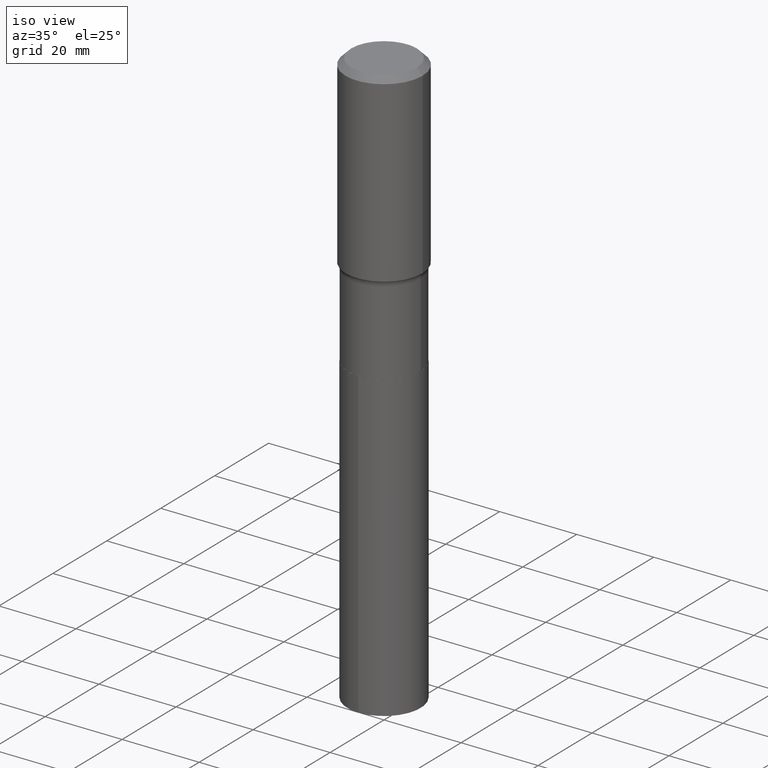
[diagram: clean part render]
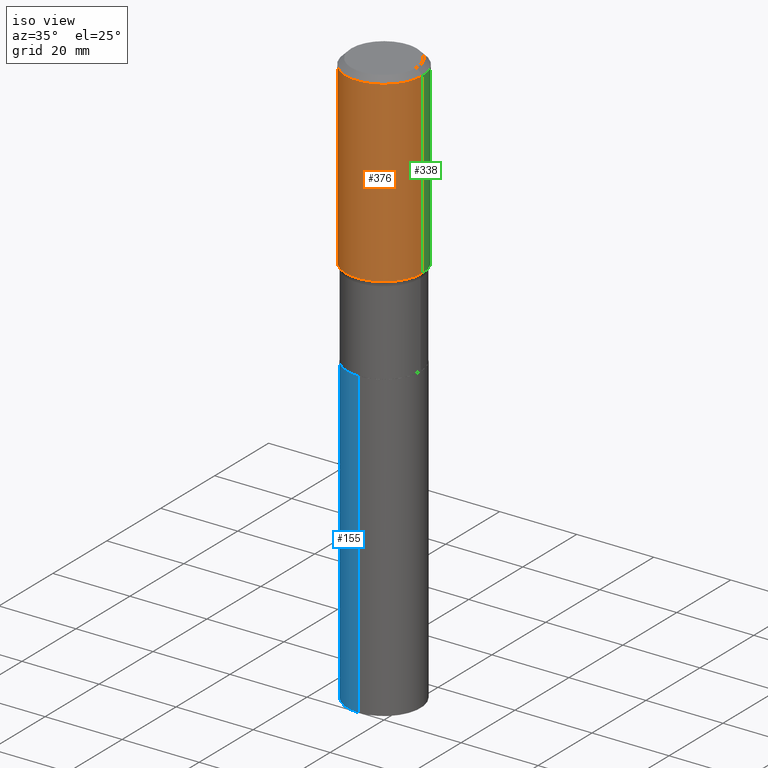
[diagram: same view with three faces highlighted in distinct colors, each labeled with its STEP entity id]
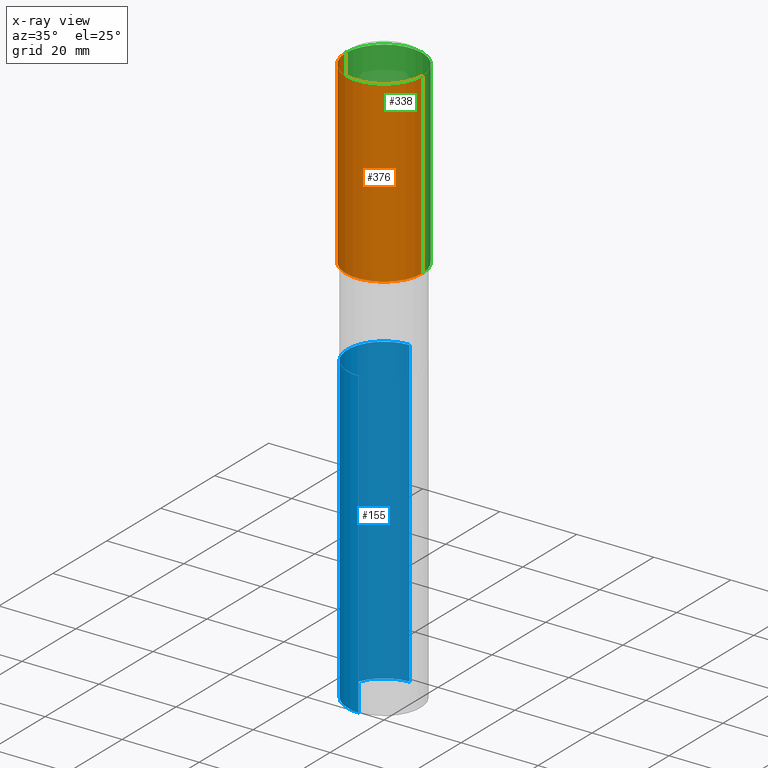
[diagram: x-ray of the same camera — body ghosted, the three highlighted faces saturated]
A machine part, iso view with three faces highlighted in distinct colors.
The next image is the same camera in x-ray (body ghosted, the three faces saturated) — at least one of them is partly hidden behind the body in this view.
Their STEP definitions:

[orange] entity #376 — the highlighted cylindrical surface (partial cylindrical patch) has radius 10 mm, axis along (-0, 0, 1).
#3 = EDGE_CURVE ( 'NONE', #307, #82, #288, .T. ) ;
#4 = CARTESIAN_POINT ( 'NONE',  ( 4.605262722311822857E-29, -6.575094646373675115E-15, -1.883181952950732985 ) ) ;
#18 = ORIENTED_EDGE ( 'NONE', *, *, #294, .F. ) ;
#19 = CARTESIAN_POINT ( 'NONE',  ( 1.444171603492640496E-30, -2.061894304653831246E-16, -0.05905500000000032945 ) ) ;
#27 = DIRECTION ( 'NONE',  ( -2.445468806185136597E-29, 3.491481338843145583E-15, 1.000000000000000000 ) ) ;
#35 = LINE ( 'NONE', #410, #236 ) ;
#52 = EDGE_LOOP ( 'NONE', ( #201, #71, #414, #18 ) ) ;
#62 = CARTESIAN_POINT ( 'NONE',  ( 0.3937000000000002164, -9.324287052578759121E-15, -1.883181952950732985 ) ) ;
#69 = CYLINDRICAL_SURFACE ( 'NONE', #178, 0.3937000000000001054 ) ;
#71 = ORIENTED_EDGE ( 'NONE', *, *, #357, .T. ) ;
#75 = DIRECTION ( 'NONE',  ( -2.445468806185136877E-29, 3.491481338843145188E-15, 1.000000000000000000 ) ) ;
#82 = VERTEX_POINT ( 'NONE', #452 ) ;
#97 = VERTEX_POINT ( 'NONE', #256 ) ;
#98 = EDGE_CURVE ( 'NONE', #277, #97, #35, .T. ) ;
#145 = FACE_OUTER_BOUND ( 'NONE', #52, .T. ) ;
#153 = DIRECTION ( 'NONE',  ( -2.445468806185136877E-29, 3.491481338843145188E-15, 1.000000000000000000 ) ) ;
#170 = DIRECTION ( 'NONE',  ( 1.000000000000000000, -6.982962677686266711E-15, 4.876176775795935793E-29 ) ) ;
#178 = AXIS2_PLACEMENT_3D ( 'NONE', #249, #27, #170 ) ;
#200 = DIRECTION ( 'NONE',  ( -2.445468806185136597E-29, 3.491481338843145583E-15, 1.000000000000000000 ) ) ;
#201 = ORIENTED_EDGE ( 'NONE', *, *, #3, .F. ) ;
#236 = VECTOR ( 'NONE', #153, 39.37007874015748143 ) ;
#249 = CARTESIAN_POINT ( 'NONE',  ( 0.000000000000000000, 0.000000000000000000, 0.000000000000000000 ) ) ;
#254 = CIRCLE ( 'NONE', #346, 0.3937000000000002164 ) ;
#256 = CARTESIAN_POINT ( 'NONE',  ( 0.3937000000000000499, -2.955381836670466588E-15, -0.05905500000000032945 ) ) ;
#266 = DIRECTION ( 'NONE',  ( 1.000000000000000000, -6.982962677686265133E-15, 0.000000000000000000 ) ) ;
#277 = VERTEX_POINT ( 'NONE', #62 ) ;
#288 = LINE ( 'NONE', #379, #426 ) ;
#294 = EDGE_CURVE ( 'NONE', #82, #97, #418, .T. ) ;
#307 = VERTEX_POINT ( 'NONE', #470 ) ;
#346 = AXIS2_PLACEMENT_3D ( 'NONE', #4, #460, #266 ) ;
#357 = EDGE_CURVE ( 'NONE', #307, #277, #254, .T. ) ;
#376 = ADVANCED_FACE ( 'NONE', ( #145 ), #69, .T. ) ;
#379 = CARTESIAN_POINT ( 'NONE',  ( -0.3937000000000001054, 2.797406750687515181E-15, -1.936584745033357016E-29 ) ) ;
#392 = AXIS2_PLACEMENT_3D ( 'NONE', #19, #200, #476 ) ;
#410 = CARTESIAN_POINT ( 'NONE',  ( 0.3937000000000001054, -2.749192406205084005E-15, 1.919750796630860452E-29 ) ) ;
#414 = ORIENTED_EDGE ( 'NONE', *, *, #98, .T. ) ;
#418 = CIRCLE ( 'NONE', #392, 0.3937000000000000499 ) ;
#426 = VECTOR ( 'NONE', #75, 39.37007874015748143 ) ;
#452 = CARTESIAN_POINT ( 'NONE',  ( -0.3937000000000000499, -5.932352877320141609E-16, -0.05905500000000032945 ) ) ;
#460 = DIRECTION ( 'NONE',  ( -2.445468806185136597E-29, 3.491481338843145583E-15, 1.000000000000000000 ) ) ;
#470 = CARTESIAN_POINT ( 'NONE',  ( -0.3937000000000002164, -3.777687895686159540E-15, -1.883181952950732985 ) ) ;
#476 = DIRECTION ( 'NONE',  ( 1.000000000000000000, -6.982962677686265922E-15, 0.000000000000000000 ) ) ;

[blue] entity #155 — the highlighted cylindrical surface (partial cylindrical patch) has radius 9.4996 mm, axis along (-0, 0, 1).
#72 = CARTESIAN_POINT ( 'NONE',  ( 1.444107478817764041E-28, -2.062110796612896083E-14, -5.905678252959260632 ) ) ;
#78 = LINE ( 'NONE', #490, #407 ) ;
#84 = LINE ( 'NONE', #86, #101 ) ;
#86 = CARTESIAN_POINT ( 'NONE',  ( 2.657429831742842925E-15, 0.3739999999999902847, -2.795200000000000795 ) ) ;
#101 = VECTOR ( 'NONE', #227, 39.37007874015748143 ) ;
#105 = EDGE_LOOP ( 'NONE', ( #275, #425, #440, #387 ) ) ;
#117 = EDGE_CURVE ( 'NONE', #199, #168, #78, .T. ) ;
#125 = CARTESIAN_POINT ( 'NONE',  ( 6.835574407048694043E-29, -9.759388638334360093E-15, -2.795199999999999907 ) ) ;
#134 = AXIS2_PLACEMENT_3D ( 'NONE', #125, #270, #486 ) ;
#135 = EDGE_CURVE ( 'NONE', #149, #369, #84, .T. ) ;
#149 = VERTEX_POINT ( 'NONE', #162 ) ;
#155 = ADVANCED_FACE ( 'NONE', ( #302 ), #462, .T. ) ;
#162 = CARTESIAN_POINT ( 'NONE',  ( 2.657429831742921023E-15, 0.3739999999999796265, -5.905678252959261521 ) ) ;
#168 = VERTEX_POINT ( 'NONE', #213 ) ;
#186 = EDGE_CURVE ( 'NONE', #369, #168, #488, .T. ) ;
#199 = VERTEX_POINT ( 'NONE', #409 ) ;
#213 = CARTESIAN_POINT ( 'NONE',  ( -2.611628041454595371E-15, -0.3740000000000097691, -2.795199999999998575 ) ) ;
#223 = AXIS2_PLACEMENT_3D ( 'NONE', #72, #280, #438 ) ;
#227 = DIRECTION ( 'NONE',  ( -2.445122506126892238E-29, 3.491977260236726997E-15, 1.000000000000000000 ) ) ;
#245 = AXIS2_PLACEMENT_3D ( 'NONE', #332, #336, #292 ) ;
#246 = CIRCLE ( 'NONE', #223, 0.3739999999999999991 ) ;
#270 = DIRECTION ( 'NONE',  ( -2.445122506126892238E-29, 3.491977260236726603E-15, 1.000000000000000000 ) ) ;
#271 = CARTESIAN_POINT ( 'NONE',  ( 2.657429831742919050E-15, 0.3739999999999902847, -2.795200000000000795 ) ) ;
#275 = ORIENTED_EDGE ( 'NONE', *, *, #135, .F. ) ;
#280 = DIRECTION ( 'NONE',  ( -2.445122506126892238E-29, 3.491977260236726603E-15, 1.000000000000000000 ) ) ;
#292 = DIRECTION ( 'NONE',  ( -6.982962677686266711E-15, -1.000000000000000000, 2.921762560068730595E-15 ) ) ;
#302 = FACE_OUTER_BOUND ( 'NONE', #105, .T. ) ;
#332 = CARTESIAN_POINT ( 'NONE',  ( 6.835574407048694043E-29, -9.759388638334360093E-15, -2.795199999999999907 ) ) ;
#336 = DIRECTION ( 'NONE',  ( -2.445122506126892238E-29, 3.491977260236726603E-15, 1.000000000000000000 ) ) ;
#337 = DIRECTION ( 'NONE',  ( -2.445122506126892238E-29, 3.491977260236726997E-15, 1.000000000000000000 ) ) ;
#369 = VERTEX_POINT ( 'NONE', #271 ) ;
#387 = ORIENTED_EDGE ( 'NONE', *, *, #186, .F. ) ;
#407 = VECTOR ( 'NONE', #337, 39.37007874015748143 ) ;
#409 = CARTESIAN_POINT ( 'NONE',  ( -2.611628041454520429E-15, -0.3740000000000208713, -5.905678252959259744 ) ) ;
#425 = ORIENTED_EDGE ( 'NONE', *, *, #479, .T. ) ;
#438 = DIRECTION ( 'NONE',  ( -6.982962677686266711E-15, -1.000000000000000000, 2.921762560068730595E-15 ) ) ;
#440 = ORIENTED_EDGE ( 'NONE', *, *, #117, .T. ) ;
#462 = CYLINDRICAL_SURFACE ( 'NONE', #134, 0.3739999999999999991 ) ;
#479 = EDGE_CURVE ( 'NONE', #149, #199, #246, .T. ) ;
#486 = DIRECTION ( 'NONE',  ( -6.982962677686266711E-15, -1.000000000000000000, 2.921762560068730595E-15 ) ) ;
#488 = CIRCLE ( 'NONE', #245, 0.3739999999999999991 ) ;
#490 = CARTESIAN_POINT ( 'NONE',  ( -2.611628041454595371E-15, -0.3740000000000097691, -2.795199999999998575 ) ) ;

[green] entity #338 — the highlighted cylindrical surface (partial cylindrical patch) has radius 10 mm, axis along (-0, 0, 1).
#3 = EDGE_CURVE ( 'NONE', #307, #82, #288, .T. ) ;
#5 = ORIENTED_EDGE ( 'NONE', *, *, #34, .F. ) ;
#14 = FACE_OUTER_BOUND ( 'NONE', #139, .T. ) ;
#16 = CIRCLE ( 'NONE', #113, 0.3937000000000000499 ) ;
#25 = DIRECTION ( 'NONE',  ( -2.445468806185136597E-29, 3.491481338843145583E-15, 1.000000000000000000 ) ) ;
#34 = EDGE_CURVE ( 'NONE', #97, #82, #16, .T. ) ;
#35 = LINE ( 'NONE', #410, #236 ) ;
#62 = CARTESIAN_POINT ( 'NONE',  ( 0.3937000000000002164, -9.324287052578759121E-15, -1.883181952950732985 ) ) ;
#73 = AXIS2_PLACEMENT_3D ( 'NONE', #314, #175, #484 ) ;
#75 = DIRECTION ( 'NONE',  ( -2.445468806185136877E-29, 3.491481338843145188E-15, 1.000000000000000000 ) ) ;
#82 = VERTEX_POINT ( 'NONE', #452 ) ;
#90 = DIRECTION ( 'NONE',  ( -2.445468806185136597E-29, 3.491481338843145583E-15, 1.000000000000000000 ) ) ;
#97 = VERTEX_POINT ( 'NONE', #256 ) ;
#98 = EDGE_CURVE ( 'NONE', #277, #97, #35, .T. ) ;
#113 = AXIS2_PLACEMENT_3D ( 'NONE', #293, #25, #450 ) ;
#124 = AXIS2_PLACEMENT_3D ( 'NONE', #276, #90, #355 ) ;
#136 = CIRCLE ( 'NONE', #73, 0.3937000000000002164 ) ;
#139 = EDGE_LOOP ( 'NONE', ( #429, #420, #5, #471 ) ) ;
#153 = DIRECTION ( 'NONE',  ( -2.445468806185136877E-29, 3.491481338843145188E-15, 1.000000000000000000 ) ) ;
#161 = CYLINDRICAL_SURFACE ( 'NONE', #124, 0.3937000000000001054 ) ;
#175 = DIRECTION ( 'NONE',  ( -2.445468806185136597E-29, 3.491481338843145583E-15, 1.000000000000000000 ) ) ;
#236 = VECTOR ( 'NONE', #153, 39.37007874015748143 ) ;
#256 = CARTESIAN_POINT ( 'NONE',  ( 0.3937000000000000499, -2.955381836670466588E-15, -0.05905500000000032945 ) ) ;
#276 = CARTESIAN_POINT ( 'NONE',  ( 0.000000000000000000, 0.000000000000000000, 0.000000000000000000 ) ) ;
#277 = VERTEX_POINT ( 'NONE', #62 ) ;
#288 = LINE ( 'NONE', #379, #426 ) ;
#293 = CARTESIAN_POINT ( 'NONE',  ( 1.444171603492640496E-30, -2.061894304653831246E-16, -0.05905500000000032945 ) ) ;
#307 = VERTEX_POINT ( 'NONE', #470 ) ;
#314 = CARTESIAN_POINT ( 'NONE',  ( 4.605262722311822857E-29, -6.575094646373675115E-15, -1.883181952950732985 ) ) ;
#338 = ADVANCED_FACE ( 'NONE', ( #14 ), #161, .T. ) ;
#355 = DIRECTION ( 'NONE',  ( 1.000000000000000000, -6.982962677686266711E-15, 4.876176775795935793E-29 ) ) ;
#379 = CARTESIAN_POINT ( 'NONE',  ( -0.3937000000000001054, 2.797406750687515181E-15, -1.936584745033357016E-29 ) ) ;
#410 = CARTESIAN_POINT ( 'NONE',  ( 0.3937000000000001054, -2.749192406205084005E-15, 1.919750796630860452E-29 ) ) ;
#412 = EDGE_CURVE ( 'NONE', #277, #307, #136, .T. ) ;
#420 = ORIENTED_EDGE ( 'NONE', *, *, #3, .T. ) ;
#426 = VECTOR ( 'NONE', #75, 39.37007874015748143 ) ;
#429 = ORIENTED_EDGE ( 'NONE', *, *, #412, .T. ) ;
#450 = DIRECTION ( 'NONE',  ( 1.000000000000000000, -6.982962677686265922E-15, 0.000000000000000000 ) ) ;
#452 = CARTESIAN_POINT ( 'NONE',  ( -0.3937000000000000499, -5.932352877320141609E-16, -0.05905500000000032945 ) ) ;
#470 = CARTESIAN_POINT ( 'NONE',  ( -0.3937000000000002164, -3.777687895686159540E-15, -1.883181952950732985 ) ) ;
#471 = ORIENTED_EDGE ( 'NONE', *, *, #98, .F. ) ;
#484 = DIRECTION ( 'NONE',  ( 1.000000000000000000, -6.982962677686265133E-15, 0.000000000000000000 ) ) ;